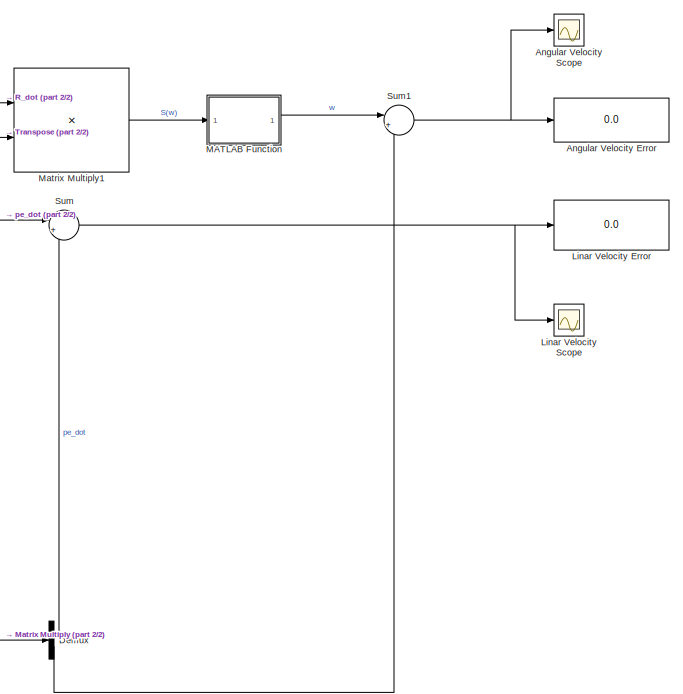
[diagram: root canvas - part 1/2, right side, full height]
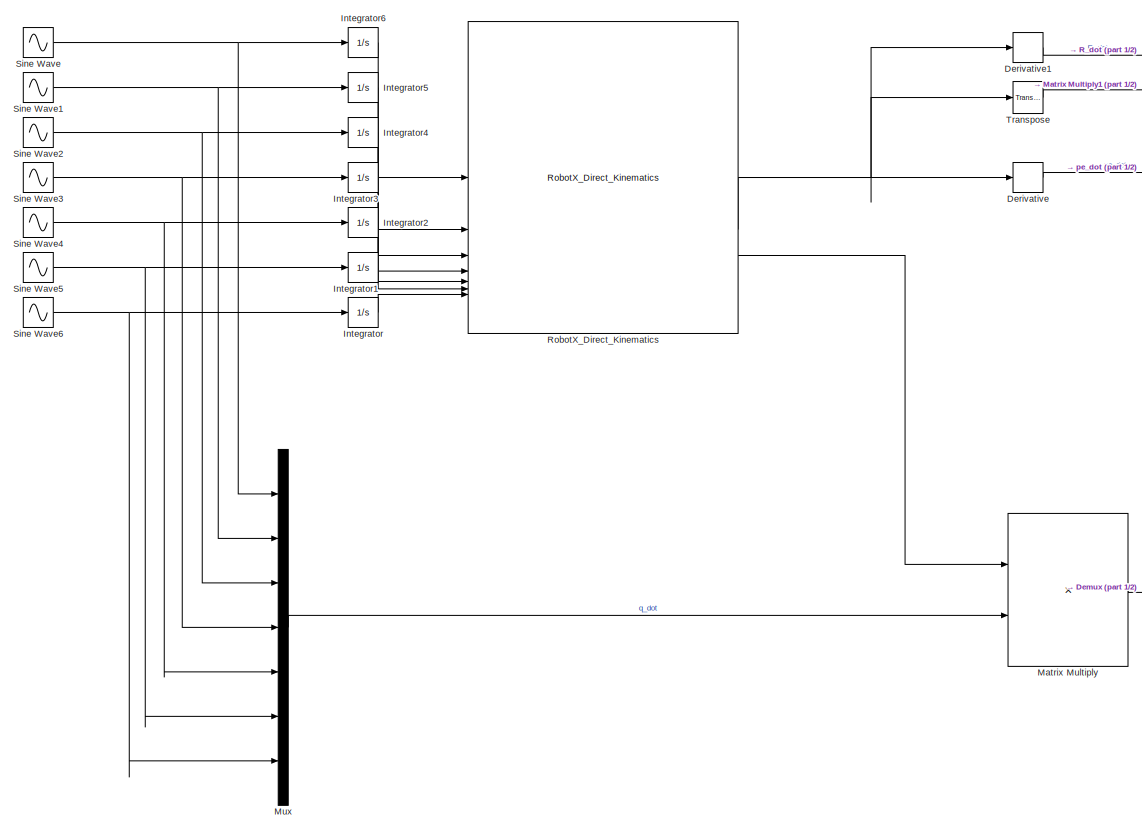
[diagram: root canvas - part 2/2, left side, full height]
MODEL slx_e8e564cd5fab
KIND model
CONFIG AbsTol = auto
CONFIG EnableMultiTasking = off
CONFIG FixedStep = auto
CONFIG MaxStep = 1e-3
CONFIG MinStep = auto
CONFIG RelTol = 1e-3
CONFIG SampleTimeConstraint = Unconstrained
CONFIG SolverName = VariableStepAuto
CONFIG StartTime = 0.0
CONFIG StopTime = 10.0
BLOCK [Display] Angular Velocity Error
  Decimation = 2
  Format = decimal (Stored Integer)
BLOCK [Scope] Angular Velocity Scope
  Floating = off
  NumInputPorts = 1
  ScopeSpecificationString = Simulink.scopes.TimeScopeBlockCfg('CurrentConfiguration', extmgr.ConfigurationSet(extmgr.Configuration('Core','General UI',true),extmgr.Configuration('Core','Source UI',true),extmgr.Configuration('Sources','WiredSimulink',true),extmgr.Configuration('Visuals','Time Domain',true,'SerializedDisplays',{struct('MinYLimReal','-0.00379','MaxYLimReal','0.00356','YLabelReal','','MinYLimMag','0.00000','MaxY...<+1461ch>
BLOCK [Demux] Demux
  Outputs = 2
BLOCK [Derivative] Derivative
BLOCK [Derivative] Derivative1
BLOCK [Integrator] Integrator
BLOCK [Integrator] Integrator1
BLOCK [Integrator] Integrator2
BLOCK [Integrator] Integrator3
BLOCK [Integrator] Integrator4
BLOCK [Integrator] Integrator5
BLOCK [Integrator] Integrator6
BLOCK [Display] Linar Velocity Error
  Decimation = 2
  Format = decimal (Stored Integer)
BLOCK [Scope] Linar Velocity Scope
  Floating = off
  NumInputPorts = 1
  ScopeSpecificationString = Simulink.scopes.TimeScopeBlockCfg('CurrentConfiguration', extmgr.ConfigurationSet(extmgr.Configuration('Core','General UI',true),extmgr.Configuration('Core','Source UI',true),extmgr.Configuration('Sources','WiredSimulink',true,'DataLoggingVariableName','ScopeData1'),extmgr.Configuration('Visuals','Time Domain',true,'SerializedDisplays',{struct('MinYLimReal','-0.00135','MaxYLimReal','0.00151','YLab...<+1497ch>
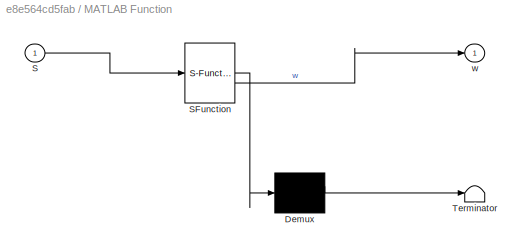
BLOCK [SubSystem] MATLAB Function
  ErrorFcn = Stateflow.Translate.translate
  PermitHierarchicalResolution = ExplicitOnly
  SFBlockType = MATLAB Function
  TreatAsAtomicUnit = on
BLOCK [Demux] MATLAB Function/ Demux 
  Outputs = 1
BLOCK [S-Function] MATLAB Function/ SFunction 
  EnableBusSupport = on
  FunctionName = sf_sfun
  PortCounts = [1 2]
  SFcnIsStateOwnerBlock = off
  SFunctionDeploymentMode = off
  Tag = Stateflow S-Function 2
BLOCK [Terminator] MATLAB Function/ Terminator 
BLOCK [Inport] MATLAB Function/S
BLOCK [Outport] MATLAB Function/w
BLOCK [Product] Matrix Multiply
  Multiplication = Matrix(*)
BLOCK [Product] Matrix Multiply1
  Multiplication = Matrix(*)
BLOCK [Mux] Mux
  DisplayOption = bar
  Inputs = 7
BLOCK [Reference] RobotX_Direct_Kinematics  REF=RobotX_Lib/RobotX_Direct_Kinematics
  SourceBlock = RobotX_Lib/RobotX_Direct_Kinematics
  SourceType = SubSystem
BLOCK [Sin] Sine Wave
  SampleTime = 0
BLOCK [Sin] Sine Wave1
  SampleTime = 0
BLOCK [Sin] Sine Wave2
  SampleTime = 0
BLOCK [Sin] Sine Wave3
  SampleTime = 0
BLOCK [Sin] Sine Wave4
  SampleTime = 0
BLOCK [Sin] Sine Wave5
  SampleTime = 0
BLOCK [Sin] Sine Wave6
  SampleTime = 0
BLOCK [Sum] Sum
  Inputs = |+-
BLOCK [Sum] Sum1
  Inputs = |+-
BLOCK [Reference] Transpose  REF=matrix_library/Transpose
  LibrarySourceBlock = simulink/Matrix\nOperations/Transpose
  SourceBlock = matrix_library/Transpose
  SourceType = Transpose
LINE Demux:1 -> Sum:2
LINE Demux:2 -> Sum1:2
LINE Derivative1:1 -> Matrix Multiply1:1
LINE Derivative:1 -> Sum:1
LINE Integrator1:1 -> RobotX_Direct_Kinematics:6
LINE Integrator2:1 -> RobotX_Direct_Kinematics:5
LINE Integrator3:1 -> RobotX_Direct_Kinematics:4
LINE Integrator4:1 -> RobotX_Direct_Kinematics:3
LINE Integrator5:1 -> RobotX_Direct_Kinematics:2
LINE Integrator6:1 -> RobotX_Direct_Kinematics:1
LINE Integrator:1 -> RobotX_Direct_Kinematics:7
LINE MATLAB Function:1 -> Sum1:1
LINE Matrix Multiply1:1 -> MATLAB Function:1
LINE Matrix Multiply:1 -> Demux:1
LINE Mux:1 -> Matrix Multiply:2
NET RobotX_Direct_Kinematics:1 -> Derivative1:1, Transpose:1
LINE RobotX_Direct_Kinematics:2 -> Derivative:1
LINE RobotX_Direct_Kinematics:3 -> Matrix Multiply:1
NET Sine Wave1:1 -> Integrator5:1, Mux:2
NET Sine Wave2:1 -> Integrator4:1, Mux:3
NET Sine Wave3:1 -> Integrator3:1, Mux:4
NET Sine Wave4:1 -> Integrator2:1, Mux:5
NET Sine Wave5:1 -> Integrator1:1, Mux:6
NET Sine Wave6:1 -> Integrator:1, Mux:7
NET Sine Wave:1 -> Integrator6:1, Mux:1
NET Sum1:1 -> Angular Velocity Error:1, Angular Velocity Scope:1
NET Sum:1 -> Linar Velocity Error:1, Linar Velocity Scope:1
LINE Transpose:1 -> Matrix Multiply1:2
note: NET lines group one-source signal fan-out (src -> all destinations, sorted); 1:1 wires keep LINE
CHART MATLAB Function states=1 transitions=1
  STATE_LABEL 'eML_blk_kernel()'
  STATE_LABEL 'SCRIPT:\nfunction w = vect(S)\n\nw = [S(3,2); S(1,3); S(2,1)];\n'
CHART  states=0 transitions=0
